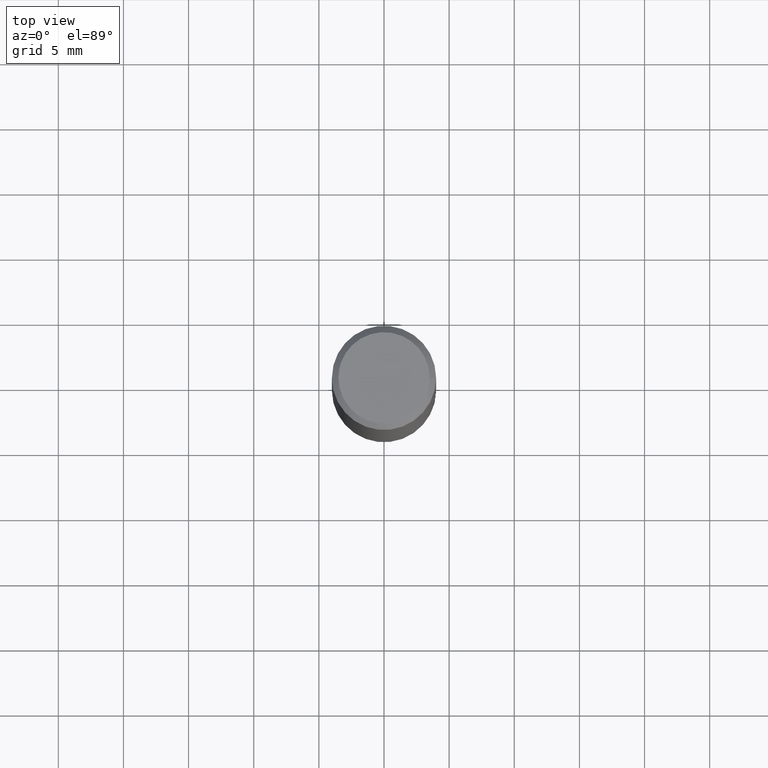
[diagram: clean part render]
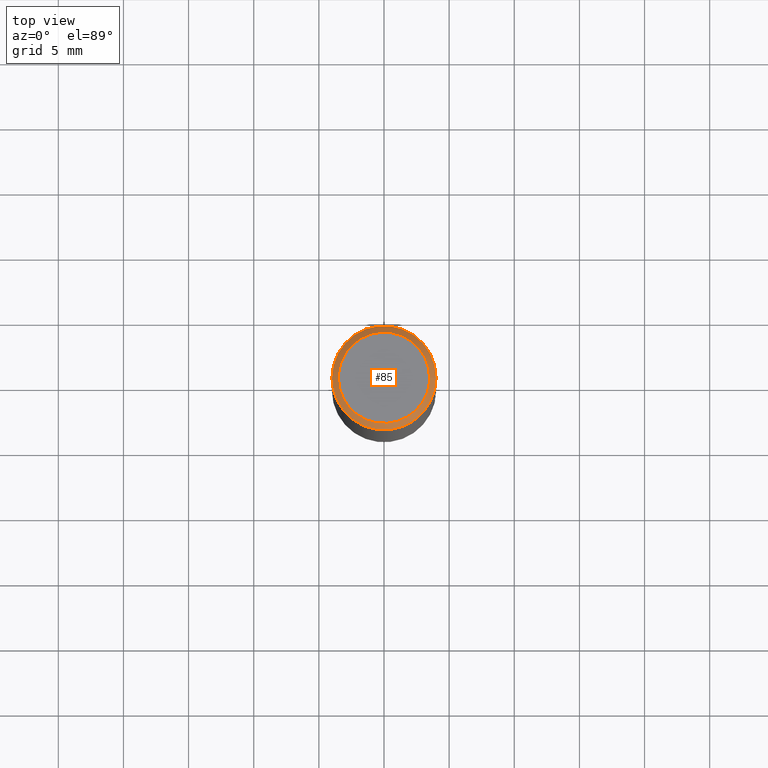
[diagram: same view with one face highlighted and labeled with its STEP entity id]
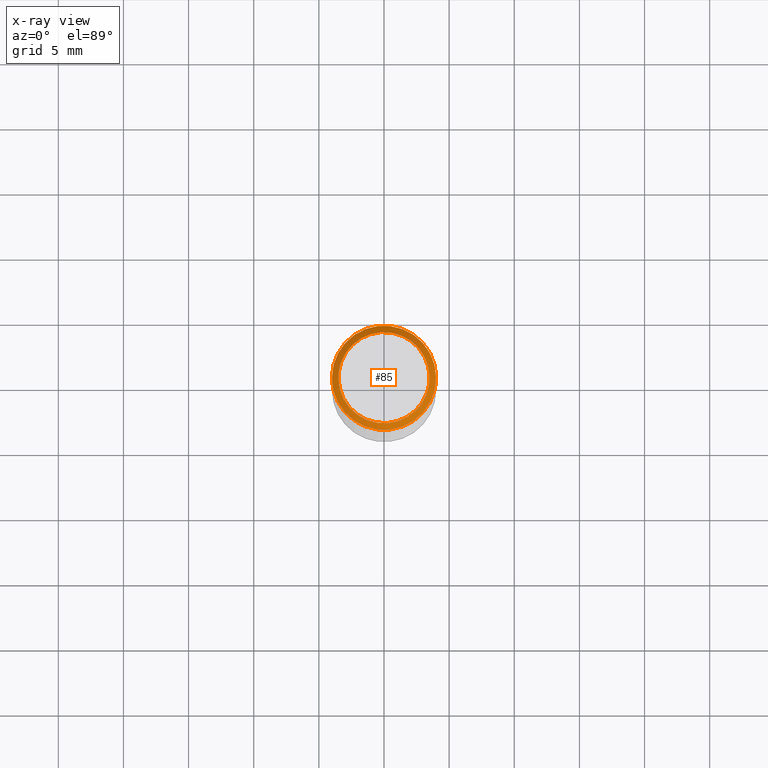
[diagram: x-ray of the same camera — body ghosted, the highlighted face saturated]
A machine part, top view. The second image highlights one B-rep face of the part: STEP entity #85.
The next image is the same camera in x-ray: the body ghosted, the highlighted face saturated — about 0% of this face is hidden behind the body in this view.
In plain terms, the highlighted face is a freeform B-spline surface patch.
Its self-contained STEP definition (entity closure, byte-faithful):
#15=LINE('',#302,#17);
#17=VECTOR('',#112,0.707106781186546);
#19=B_SPLINE_SURFACE_WITH_KNOTS('',3,3,((#218,#219,#220,#221,#222,#223,
#224,#225,#226,#227,#228,#229,#230,#231,#232,#233,#234,#235,#236,#237,#238),
(#239,#240,#241,#242,#243,#244,#245,#246,#247,#248,#249,#250,#251,#252,
#253,#254,#255,#256,#257,#258,#259),(#260,#261,#262,#263,#264,#265,#266,
#267,#268,#269,#270,#271,#272,#273,#274,#275,#276,#277,#278,#279,#280),
(#281,#282,#283,#284,#285,#286,#287,#288,#289,#290,#291,#292,#293,#294,
#295,#296,#297,#298,#299,#300,#301)),.UNSPECIFIED.,.F.,.T.,.F.,(4,4),(4,
1,1,1,1,1,1,1,1,1,1,1,1,1,1,1,1,1,4),(-0.000155473939237252,0.707106781186548),
(0.,1.46317741512096,2.19830596759267,2.93343452006437,4.39661193518533,
5.8597893503063,7.32296676542726,8.78614418054822,10.2493215956692,11.7124990107901,
13.1756764259111,14.6388538410321,16.102031256153,17.565208671274,19.028386086395,
20.4915635015159,21.2266920539876,21.9618206064593,23.4249980215803),
 .UNSPECIFIED.);
#24=CIRCLE('',#93,4.);
#25=CIRCLE('',#94,4.);
#30=FACE_OUTER_BOUND('',#36,.T.);
#36=EDGE_LOOP('',(#68,#69,#70,#71,#72,#73));
#40=B_SPLINE_CURVE_WITH_KNOTS('',3,(#174,#175,#176,#177,#178,#179,#180,
#181,#182,#183,#184,#185,#186,#187,#188,#189,#190,#191,#192,#193,#194,#195),
 .UNSPECIFIED.,.F.,.F.,(4,2,2,2,2,2,2,2,2,2,4),(9.99999956626313E-7,0.0728933082065209,
0.145679835181092,0.279312765602998,0.411914353176092,0.544900310348418,
0.677848824480262,0.810905341006086,0.944640724719306,1.01702181769412,
1.08955497045244),.UNSPECIFIED.);
#41=B_SPLINE_CURVE_WITH_KNOTS('',3,(#196,#197,#198,#199,#200,#201,#202,
#203,#204,#205,#206,#207,#208,#209,#210,#211,#212,#213,#214,#215,#216,#217),
 .UNSPECIFIED.,.F.,.F.,(4,2,2,2,2,2,2,2,2,2,4),(1.00000000138878E-6,0.0727074412823273,
0.145261459495931,0.279316349619257,0.412690750677529,0.545956891313938,
0.679260564445767,0.812178949683233,0.946131141744621,1.01909156257802,
1.09215801736459),.UNSPECIFIED.);
#46=VERTEX_POINT('',#167);
#47=VERTEX_POINT('',#168);
#48=VERTEX_POINT('',#172);
#49=VERTEX_POINT('',#173);
#54=EDGE_CURVE('',#46,#47,#24,.T.);
#55=EDGE_CURVE('',#47,#46,#25,.T.);
#56=EDGE_CURVE('',#48,#49,#40,.T.);
#57=EDGE_CURVE('',#49,#48,#41,.T.);
#58=EDGE_CURVE('',#47,#48,#15,.T.);
#68=ORIENTED_EDGE('',*,*,#58,.T.);
#69=ORIENTED_EDGE('',*,*,#57,.F.);
#70=ORIENTED_EDGE('',*,*,#56,.F.);
#71=ORIENTED_EDGE('',*,*,#58,.F.);
#72=ORIENTED_EDGE('',*,*,#55,.T.);
#73=ORIENTED_EDGE('',*,*,#54,.T.);
#85=ADVANCED_FACE('',(#30),#19,.F.);
#93=AXIS2_PLACEMENT_3D('',#169,#106,#107);
#94=AXIS2_PLACEMENT_3D('',#170,#108,#109);
#106=DIRECTION('center_axis',(0.,0.,1.));
#107=DIRECTION('ref_axis',(1.,0.,0.));
#108=DIRECTION('center_axis',(0.,0.,1.));
#109=DIRECTION('ref_axis',(1.,0.,0.));
#112=DIRECTION('',(-0.707106781186549,0.,0.707106781186546));
#167=CARTESIAN_POINT('',(-4.,0.,54.5));
#168=CARTESIAN_POINT('',(4.,0.,54.5));
#169=CARTESIAN_POINT('Origin',(0.,0.,54.5));
#170=CARTESIAN_POINT('Origin',(0.,0.,54.5));
#172=CARTESIAN_POINT('',(3.5,0.,55.));
#173=CARTESIAN_POINT('',(-3.5,0.,55.));
#174=CARTESIAN_POINT('Ctrl Pts',(3.5,-2.08166817117217E-16,55.));
#175=CARTESIAN_POINT('Ctrl Pts',(3.5,0.242974806164053,55.));
#176=CARTESIAN_POINT('Ctrl Pts',(3.47383428472649,0.486705104341955,55.));
#177=CARTESIAN_POINT('Ctrl Pts',(3.37326496683072,0.961860113207427,55.));
#178=CARTESIAN_POINT('Ctrl Pts',(3.29845652102034,1.19553932260184,55.));
#179=CARTESIAN_POINT('Ctrl Pts',(3.01800199087992,1.8289820367931,55.));
#180=CARTESIAN_POINT('Ctrl Pts',(2.75716581564111,2.20289698175356,55.));
#181=CARTESIAN_POINT('Ctrl Pts',(2.11206711395443,2.82597704878324,55.));
#182=CARTESIAN_POINT('Ctrl Pts',(1.72928765719694,3.07558529925453,55.0000000000001));
#183=CARTESIAN_POINT('Ctrl Pts',(0.898022418884165,3.41267577033778,55.0000000000001));
#184=CARTESIAN_POINT('Ctrl Pts',(0.449137718192335,3.50007858547292,55.));
#185=CARTESIAN_POINT('Ctrl Pts',(-0.449011260616497,3.49992143665332,55.));
#186=CARTESIAN_POINT('Ctrl Pts',(-0.898085462997445,3.41241076088353,55.0000000000001));
#187=CARTESIAN_POINT('Ctrl Pts',(-1.73078760346223,3.07518865955996,55.0000000000001));
#188=CARTESIAN_POINT('Ctrl Pts',(-2.1137835151472,2.82532242067028,55.));
#189=CARTESIAN_POINT('Ctrl Pts',(-2.75953541421206,2.19968022452363,55.));
#190=CARTESIAN_POINT('Ctrl Pts',(-3.02092157343844,1.82337171273479,55.0000000000001));
#191=CARTESIAN_POINT('Ctrl Pts',(-3.30034828038063,1.190416832168,55.0000000000001));
#192=CARTESIAN_POINT('Ctrl Pts',(-3.3746671070178,0.958478367467301,55.0000000000001));
#193=CARTESIAN_POINT('Ctrl Pts',(-3.47449726331823,0.484677860407673,55.0000000000001));
#194=CARTESIAN_POINT('Ctrl Pts',(-3.5,0.242355248614225,55.));
#195=CARTESIAN_POINT('Ctrl Pts',(-3.5,-4.16333634234434E-16,55.));
#196=CARTESIAN_POINT('Ctrl Pts',(-3.5,-1.38777878078145E-16,55.));
#197=CARTESIAN_POINT('Ctrl Pts',(-3.50000000000001,-0.242355248614015,55.));
#198=CARTESIAN_POINT('Ctrl Pts',(-3.47449726331835,-0.484677860407254,55.));
#199=CARTESIAN_POINT('Ctrl Pts',(-3.37466710701789,-0.958478367467172,55.));
#200=CARTESIAN_POINT('Ctrl Pts',(-3.30034828038075,-1.19041683216781,55.));
#201=CARTESIAN_POINT('Ctrl Pts',(-3.02092157343841,-1.82337171273504,55.));
#202=CARTESIAN_POINT('Ctrl Pts',(-2.75953541421187,-2.19968022452377,55.0000000000001));
#203=CARTESIAN_POINT('Ctrl Pts',(-2.11378351514717,-2.82532242067016,55.0000000000001));
#204=CARTESIAN_POINT('Ctrl Pts',(-1.73078760346226,-3.07518865955995,55.));
#205=CARTESIAN_POINT('Ctrl Pts',(-0.898085462997455,-3.41241076088354,55.));
#206=CARTESIAN_POINT('Ctrl Pts',(-0.44901126061648,-3.49992143665332,55.));
#207=CARTESIAN_POINT('Ctrl Pts',(0.449137718192284,-3.50007858547293,55.));
#208=CARTESIAN_POINT('Ctrl Pts',(0.898022418884136,-3.4126757703378,55.));
#209=CARTESIAN_POINT('Ctrl Pts',(1.72928765719696,-3.07558529925452,55.));
#210=CARTESIAN_POINT('Ctrl Pts',(2.11206711395446,-2.82597704878318,55.0000000000001));
#211=CARTESIAN_POINT('Ctrl Pts',(2.75716581564114,-2.2028969817535,55.0000000000001));
#212=CARTESIAN_POINT('Ctrl Pts',(3.01800199087992,-1.82898203679303,55.0000000000001));
#213=CARTESIAN_POINT('Ctrl Pts',(3.29845652102033,-1.19553932260183,55.0000000000001));
#214=CARTESIAN_POINT('Ctrl Pts',(3.37326496683069,-0.961860113207375,55.0000000000001));
#215=CARTESIAN_POINT('Ctrl Pts',(3.47383428472632,-0.486705104342487,55.0000000000001));
#216=CARTESIAN_POINT('Ctrl Pts',(3.5,-0.242974806164282,55.));
#217=CARTESIAN_POINT('Ctrl Pts',(3.5,1.17961196366423E-15,55.));
#218=CARTESIAN_POINT('Ctrl Pts',(4.00010993667673,0.,54.4998900633233));
#219=CARTESIAN_POINT('Ctrl Pts',(4.00010993667673,0.520255157097452,54.4998900633233));
#220=CARTESIAN_POINT('Ctrl Pts',(3.84236577736367,1.31276792838239,54.4998900633232));
#221=CARTESIAN_POINT('Ctrl Pts',(3.34721651785783,2.2363794975493,54.4998900633233));
#222=CARTESIAN_POINT('Ctrl Pts',(2.68250321511253,3.04796154067474,54.4998900633232));
#223=CARTESIAN_POINT('Ctrl Pts',(1.57021886381378,3.79242374847558,54.4998900633233));
#224=CARTESIAN_POINT('Ctrl Pts',(0.000109661465914448,4.10409042029349,
54.4998900633233));
#225=CARTESIAN_POINT('Ctrl Pts',(-1.57065750967744,3.79187419041086,54.4998900633233));
#226=CARTESIAN_POINT('Ctrl Pts',(-2.90213442518709,2.902131007807,54.4998900633233));
#227=CARTESIAN_POINT('Ctrl Pts',(-3.79183395986907,1.57063094865598,54.4998900633233));
#228=CARTESIAN_POINT('Ctrl Pts',(-4.10424792508056,5.55074859543121E-16,
54.4998900633233));
#229=CARTESIAN_POINT('Ctrl Pts',(-3.79183395986907,-1.57063094865598,54.4998900633233));
#230=CARTESIAN_POINT('Ctrl Pts',(-2.90213442518709,-2.902131007807,54.4998900633232));
#231=CARTESIAN_POINT('Ctrl Pts',(-1.57065750967744,-3.79187419041085,54.4998900633233));
#232=CARTESIAN_POINT('Ctrl Pts',(0.000109661465918449,-4.10409042029349,
54.4998900633233));
#233=CARTESIAN_POINT('Ctrl Pts',(1.57021886381378,-3.79242374847558,54.4998900633232));
#234=CARTESIAN_POINT('Ctrl Pts',(2.68250321511253,-3.04796154067474,54.4998900633233));
#235=CARTESIAN_POINT('Ctrl Pts',(3.34721651785783,-2.2363794975493,54.4998900633232));
#236=CARTESIAN_POINT('Ctrl Pts',(3.84236577736367,-1.31276792838239,54.4998900633233));
#237=CARTESIAN_POINT('Ctrl Pts',(4.00010993667673,-0.520255157097454,54.4998900633233));
#238=CARTESIAN_POINT('Ctrl Pts',(4.00010993667673,-9.79744326680281E-16,
54.4998900633233));
#239=CARTESIAN_POINT('Ctrl Pts',(3.83340662445115,0.,54.6665933755488));
#240=CARTESIAN_POINT('Ctrl Pts',(3.83340662445115,0.498573688521957,54.6665933755488));
#241=CARTESIAN_POINT('Ctrl Pts',(3.6822364029193,1.25805874155772,54.6665933755488));
#242=CARTESIAN_POINT('Ctrl Pts',(3.20772233167388,2.14317909167632,54.6665933755489));
#243=CARTESIAN_POINT('Ctrl Pts',(2.57071074488194,2.92093871070002,54.6665933755488));
#244=CARTESIAN_POINT('Ctrl Pts',(1.50478049095388,3.63437569223664,54.6665933755488));
#245=CARTESIAN_POINT('Ctrl Pts',(0.000105091359122632,3.93305375441011,
54.6665933755488));
#246=CARTESIAN_POINT('Ctrl Pts',(-1.50520085639037,3.63384903682987,54.6665933755489));
#247=CARTESIAN_POINT('Ctrl Pts',(-2.78118889397389,2.78118561901204,54.6665933755488));
#248=CARTESIAN_POINT('Ctrl Pts',(-3.63381048288314,1.50517540229105,54.6665933755488));
#249=CARTESIAN_POINT('Ctrl Pts',(-3.93320469523516,6.10671527058115E-16,
54.6665933755489));
#250=CARTESIAN_POINT('Ctrl Pts',(-3.63381048288314,-1.50517540229105,54.6665933755489));
#251=CARTESIAN_POINT('Ctrl Pts',(-2.78118889397389,-2.78118561901204,54.6665933755488));
#252=CARTESIAN_POINT('Ctrl Pts',(-1.50520085639037,-3.63384903682987,54.6665933755489));
#253=CARTESIAN_POINT('Ctrl Pts',(0.000105091359125632,-3.93305375441011,
54.6665933755489));
#254=CARTESIAN_POINT('Ctrl Pts',(1.50478049095388,-3.63437569223664,54.6665933755488));
#255=CARTESIAN_POINT('Ctrl Pts',(2.57071074488194,-2.92093871070002,54.6665933755489));
#256=CARTESIAN_POINT('Ctrl Pts',(3.20772233167388,-2.14317909167631,54.6665933755488));
#257=CARTESIAN_POINT('Ctrl Pts',(3.6822364029193,-1.25805874155773,54.6665933755489));
#258=CARTESIAN_POINT('Ctrl Pts',(3.83340662445115,-0.498573688521958,54.6665933755488));
#259=CARTESIAN_POINT('Ctrl Pts',(3.83340662445115,-9.38913851164176E-16,
54.6665933755488));
#260=CARTESIAN_POINT('Ctrl Pts',(3.66670331222558,0.,54.8332966877744));
#261=CARTESIAN_POINT('Ctrl Pts',(3.66670331222558,0.476892219946461,54.8332966877744));
#262=CARTESIAN_POINT('Ctrl Pts',(3.52210702847494,1.20334955473305,54.8332966877744));
#263=CARTESIAN_POINT('Ctrl Pts',(3.06822814548993,2.04997868580333,54.8332966877744));
#264=CARTESIAN_POINT('Ctrl Pts',(2.45891827465135,2.79391588072531,54.8332966877744));
#265=CARTESIAN_POINT('Ctrl Pts',(1.43934211809398,3.4763276359977,54.8332966877744));
#266=CARTESIAN_POINT('Ctrl Pts',(0.000100521252329816,3.76201708852672,
54.8332966877744));
#267=CARTESIAN_POINT('Ctrl Pts',(-1.4397442031033,3.47582388324888,54.8332966877744));
#268=CARTESIAN_POINT('Ctrl Pts',(-2.66024336276069,2.66024023021707,54.8332966877744));
#269=CARTESIAN_POINT('Ctrl Pts',(-3.47578700589722,1.43971985592612,54.8332966877744));
#270=CARTESIAN_POINT('Ctrl Pts',(-3.76216146538976,4.996004E-16,54.8332966877744));
#271=CARTESIAN_POINT('Ctrl Pts',(-3.47578700589722,-1.43971985592612,54.8332966877744));
#272=CARTESIAN_POINT('Ctrl Pts',(-2.66024336276069,-2.66024023021707,54.8332966877744));
#273=CARTESIAN_POINT('Ctrl Pts',(-1.4397442031033,-3.47582388324888,54.8332966877744));
#274=CARTESIAN_POINT('Ctrl Pts',(0.000100521252333816,-3.76201708852672,
54.8332966877744));
#275=CARTESIAN_POINT('Ctrl Pts',(1.43934211809398,-3.4763276359977,54.8332966877744));
#276=CARTESIAN_POINT('Ctrl Pts',(2.45891827465135,-2.79391588072531,54.8332966877744));
#277=CARTESIAN_POINT('Ctrl Pts',(3.06822814548993,-2.04997868580333,54.8332966877744));
#278=CARTESIAN_POINT('Ctrl Pts',(3.52210702847494,-1.20334955473306,54.8332966877744));
#279=CARTESIAN_POINT('Ctrl Pts',(3.66670331222558,-0.476892219946463,54.8332966877744));
#280=CARTESIAN_POINT('Ctrl Pts',(3.66670331222558,-8.98083275560098E-16,
54.8332966877744));
#281=CARTESIAN_POINT('Ctrl Pts',(3.5,0.,55.));
#282=CARTESIAN_POINT('Ctrl Pts',(3.5,0.455210751370966,55.));
#283=CARTESIAN_POINT('Ctrl Pts',(3.36197765403058,1.14864036790839,55.));
#284=CARTESIAN_POINT('Ctrl Pts',(2.92873395930598,1.95677827993034,55.));
#285=CARTESIAN_POINT('Ctrl Pts',(2.34712580442076,2.66689305075059,55.));
#286=CARTESIAN_POINT('Ctrl Pts',(1.37390374523409,3.31827957975876,55.));
#287=CARTESIAN_POINT('Ctrl Pts',(9.5951145538E-5,3.59098042264334,55.));
#288=CARTESIAN_POINT('Ctrl Pts',(-1.37428754981623,3.3177987296679,55.));
#289=CARTESIAN_POINT('Ctrl Pts',(-2.53929783154749,2.5392948414221,55.));
#290=CARTESIAN_POINT('Ctrl Pts',(-3.3177635289113,1.3742643095612,55.));
#291=CARTESIAN_POINT('Ctrl Pts',(-3.59111823554435,4.996004E-16,55.));
#292=CARTESIAN_POINT('Ctrl Pts',(-3.3177635289113,-1.3742643095612,55.));
#293=CARTESIAN_POINT('Ctrl Pts',(-2.53929783154749,-2.5392948414221,55.));
#294=CARTESIAN_POINT('Ctrl Pts',(-1.37428754981624,-3.3177987296679,55.));
#295=CARTESIAN_POINT('Ctrl Pts',(9.5951145541E-5,-3.59098042264334,55.));
#296=CARTESIAN_POINT('Ctrl Pts',(1.37390374523408,-3.31827957975877,55.));
#297=CARTESIAN_POINT('Ctrl Pts',(2.34712580442076,-2.6668930507506,55.));
#298=CARTESIAN_POINT('Ctrl Pts',(2.92873395930598,-1.95677827993034,55.));
#299=CARTESIAN_POINT('Ctrl Pts',(3.36197765403058,-1.14864036790839,55.));
#300=CARTESIAN_POINT('Ctrl Pts',(3.5,-0.455210751370967,55.));
#301=CARTESIAN_POINT('Ctrl Pts',(3.5,-8.572528E-16,55.));
#302=CARTESIAN_POINT('',(4.,0.,54.5));